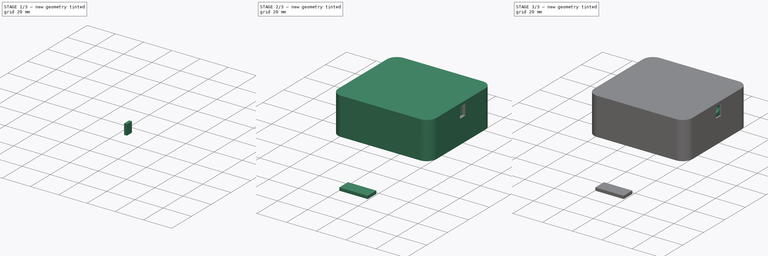
[diagram: build sequence overview — one tinted view per stage of 3, left to right]
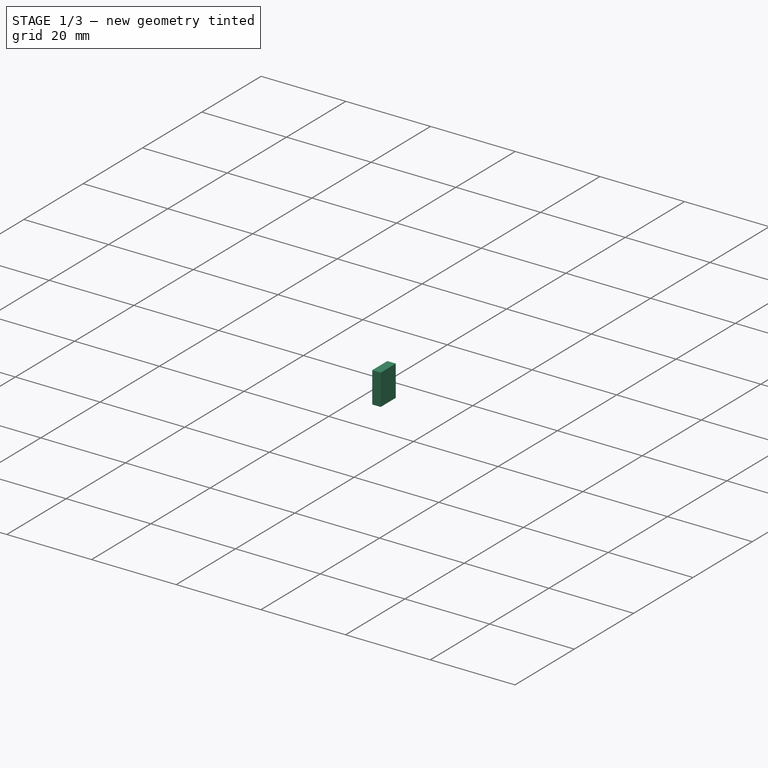
[diagram: stage 1 of 3 — iso view after this stage's code; geometry added in this stage tinted green]
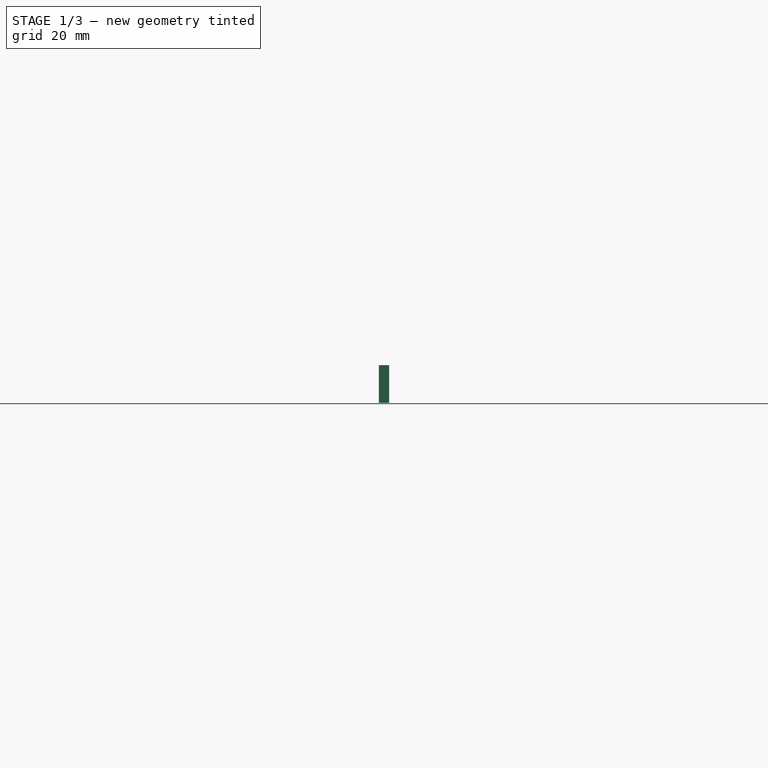
[diagram: stage 1 of 3 — front view after this stage's code; geometry added in this stage tinted green]
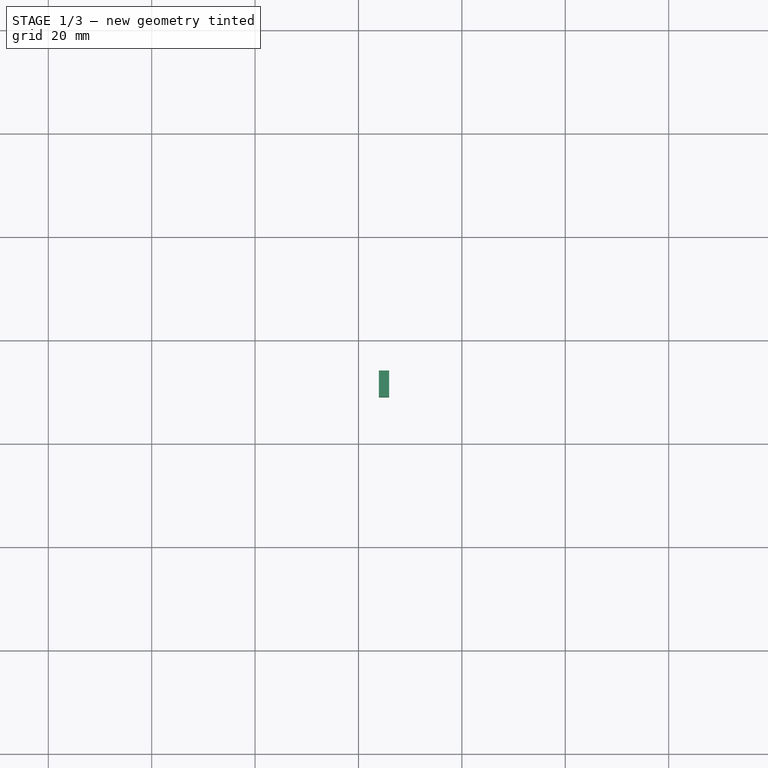
[diagram: stage 1 of 3 — top view after this stage's code; geometry added in this stage tinted green]
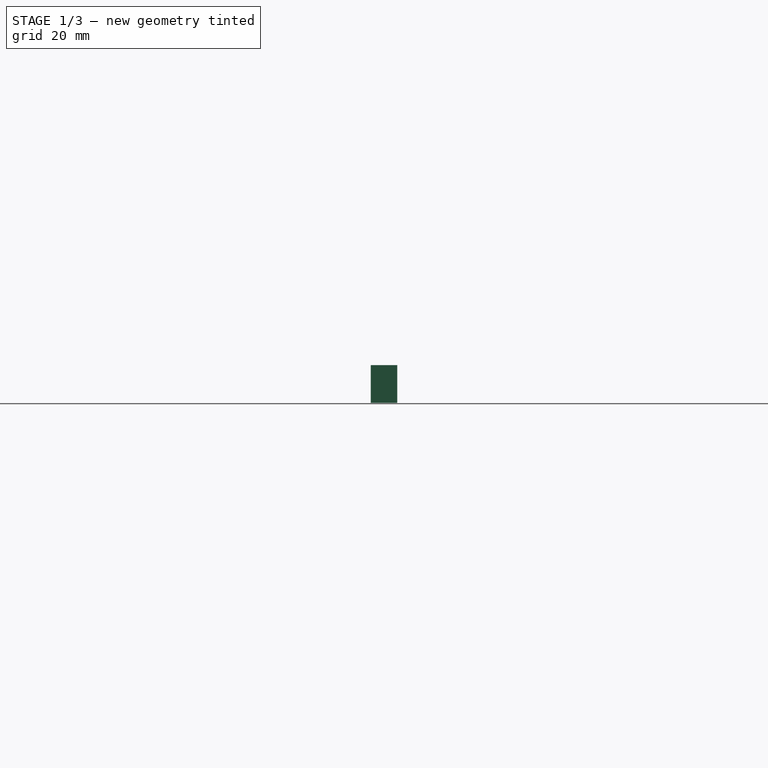
[diagram: stage 1 of 3 — right view after this stage's code; geometry added in this stage tinted green]
FCSTD DOCUMENT  (FreeCAD 0.21R33771 (Git))
Label: Box_Asy
License: All rights reserved
LicenseURL: https://en.wikipedia.org/wiki/All_rights_reserved
objects: Part::FeaturePython×4, Sketcher::SketchObject×2, Part::Extrusion×2, Part::Cut×2
note: 10 computed .brp shape members not serialized (recipe doc carries the construction recipe); baked Part::Feature solids carry a one-line shape summary decoded from their .brp

FEATURE [Part::FeaturePython] b_Back_unit_001_  label="Back_unit_001"  # a2plus imported part (geometry in sourceFile) (typed FeaturePython)
  Placement = pos=(-0.0636952,-0.0177826,2.56684) rot=(0,0,1;0rad)
  a2p_Version = 0.4.66
  fixedPosition = false
  objectType = a2pPart
  sourceFile = .\Back_unit.FCStd
  subassemblyImport = false
  timeLastImport = 1.72527e+09
  updateColors = true
FEATURE [Part::Cut] Cut
  Base = -> Extrude
  Tool = -> Extrude
FEATURE [Sketcher::SketchObject] Sketch001
  FullyConstrained = false
  MapMode = 5
  Placement = pos=(65.9363,-0.0177826,2.56684) rot=(0.57735,0.57735,0.57735;2.0944rad)
  Support = -> [b_Back_unit_001_]
  sketch-geometry (4):
    g0: LineSegment StartX=29.0563 StartY=23.1555 StartZ=0 EndX=34.161 EndY=23.1555 EndZ=0
    g1: LineSegment StartX=34.161 StartY=23.1555 StartZ=0 EndX=34.161 EndY=15.8379 EndZ=0
    g2: LineSegment StartX=34.161 StartY=15.8379 StartZ=0 EndX=29.0563 EndY=15.8379 EndZ=0
    g3: LineSegment StartX=29.0563 StartY=15.8379 StartZ=0 EndX=29.0563 EndY=23.1555 EndZ=0
  constraints (8):
    c: Coincident(g0,g1)
    c: Coincident(g1,g2)
    c: Coincident(g2,g3)
    c: Coincident(g3,g0)
    c: Horizontal(g0)
    c: Horizontal(g2)
    c: Vertical(g1)
    c: Vertical(g3)
FEATURE [Part::Extrusion] Extrude001
  Base = -> Sketch001
  Dir = (1,0,0)
  DirMode = 2
  FaceMakerClass = Part::FaceMakerBullseye
  LengthFwd = -2
  LengthRev = 0
  Solid = true
  Symmetric = false
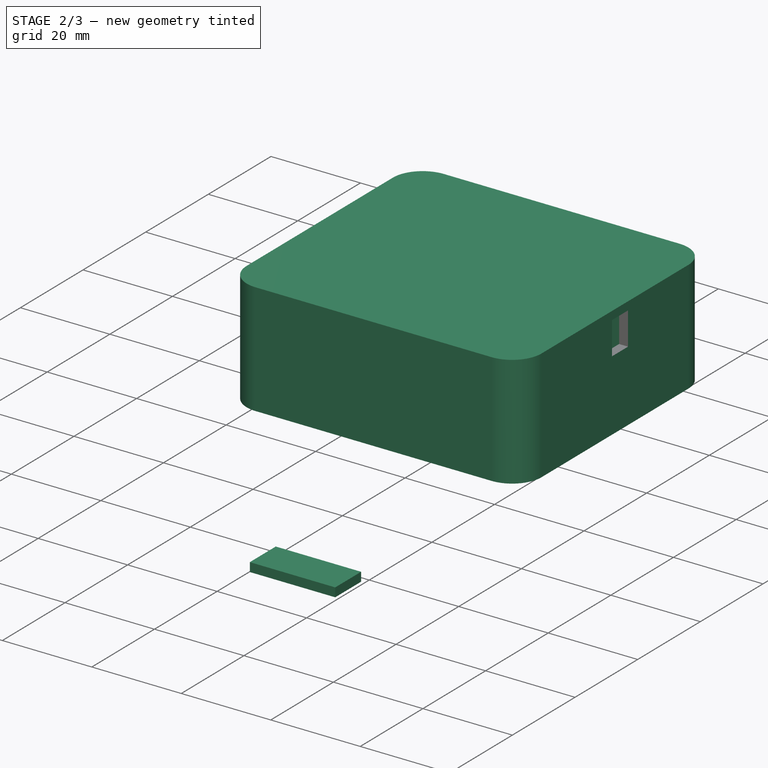
[diagram: stage 2 of 3 — iso view after this stage's code; geometry added in this stage tinted green]
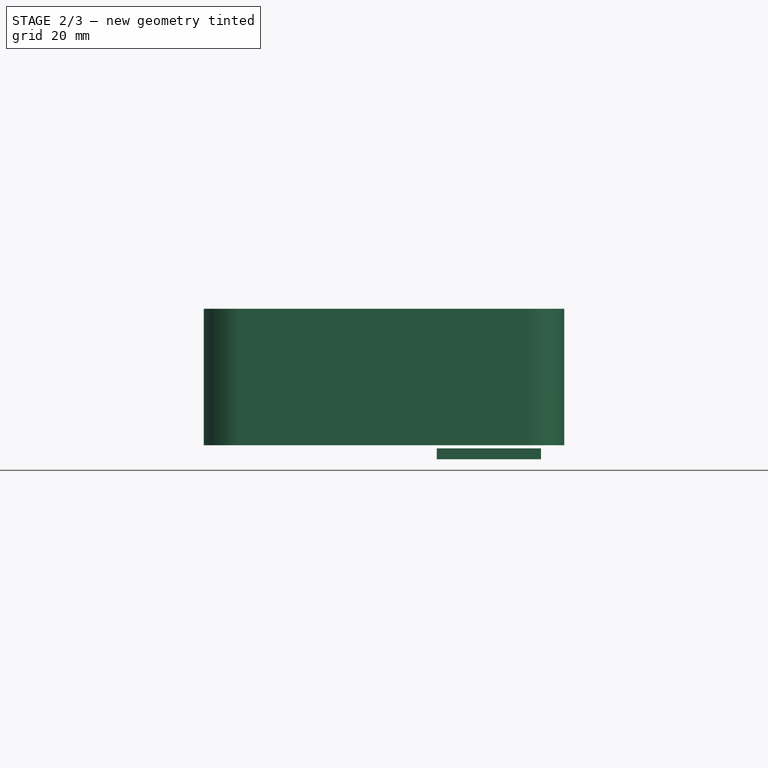
[diagram: stage 2 of 3 — front view after this stage's code; geometry added in this stage tinted green]
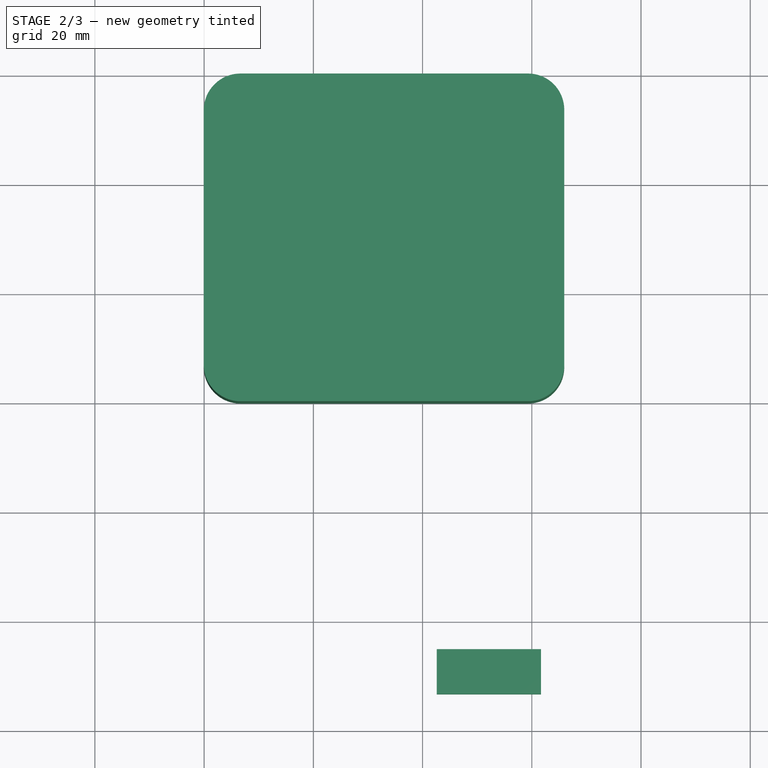
[diagram: stage 2 of 3 — top view after this stage's code; geometry added in this stage tinted green]
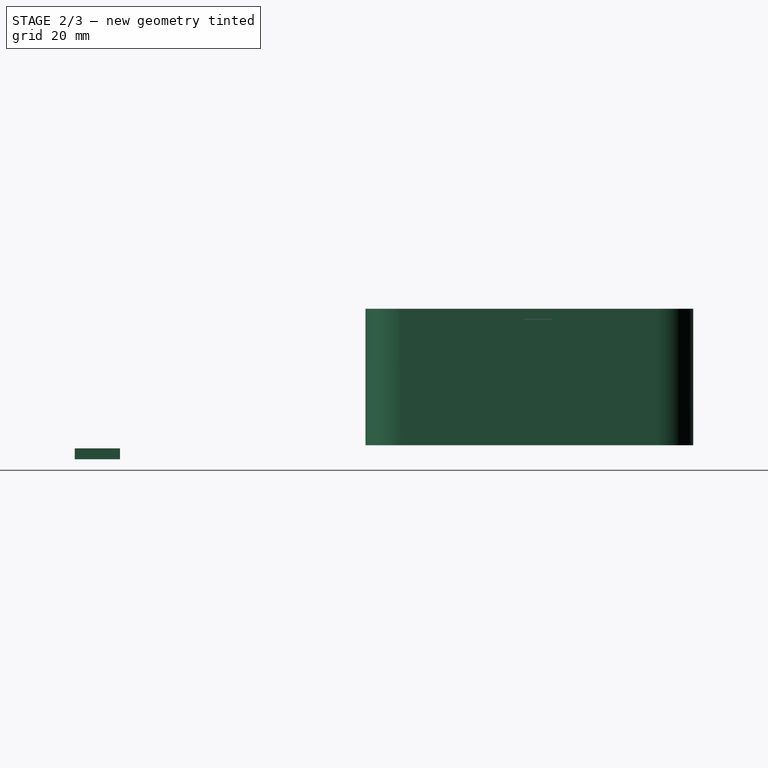
[diagram: stage 2 of 3 — right view after this stage's code; geometry added in this stage tinted green]
FEATURE [Part::FeaturePython] b_Base_001_  label="Base_001"  # a2plus imported part (geometry in sourceFile) (typed FeaturePython)
  a2p_Version = 0.4.66
  fixedPosition = true
  objectType = a2pPart
  sourceFile = .\Base.FCStd
  subassemblyImport = false
  timeLastImport = 1.72527e+09
  updateColors = true
FEATURE [Sketcher::SketchObject] Sketch
  FullyConstrained = false
  MapMode = 5
  Placement = pos=(0,0,2) rot=(0,0,1;0rad)
  Support = -> [b_Base_001_]
  sketch-geometry (4):
    g0: LineSegment StartX=42.592 StartY=-44.9777 StartZ=0 EndX=61.6733 EndY=-44.9777 EndZ=0
    g1: LineSegment StartX=61.6733 StartY=-44.9777 StartZ=0 EndX=61.6733 EndY=-53.2442 EndZ=0
    g2: LineSegment StartX=61.6733 StartY=-53.2442 StartZ=0 EndX=42.592 EndY=-53.2442 EndZ=0
    g3: LineSegment StartX=42.592 StartY=-53.2442 StartZ=0 EndX=42.592 EndY=-44.9777 EndZ=0
  constraints (8):
    c: Coincident(g0,g1)
    c: Coincident(g1,g2)
    c: Coincident(g2,g3)
    c: Coincident(g3,g0)
    c: Horizontal(g0)
    c: Horizontal(g2)
    c: Vertical(g1)
    c: Vertical(g3)
FEATURE [Part::Extrusion] Extrude
  Base = -> Sketch
  Dir = (0,0,1)
  DirMode = 2
  FaceMakerClass = Part::FaceMakerBullseye
  LengthFwd = -2
  LengthRev = 0
  Solid = true
  Symmetric = false
FEATURE [Part::Cut] Cut001
  Base = -> b_Back_unit_001_
  Tool = -> Extrude001
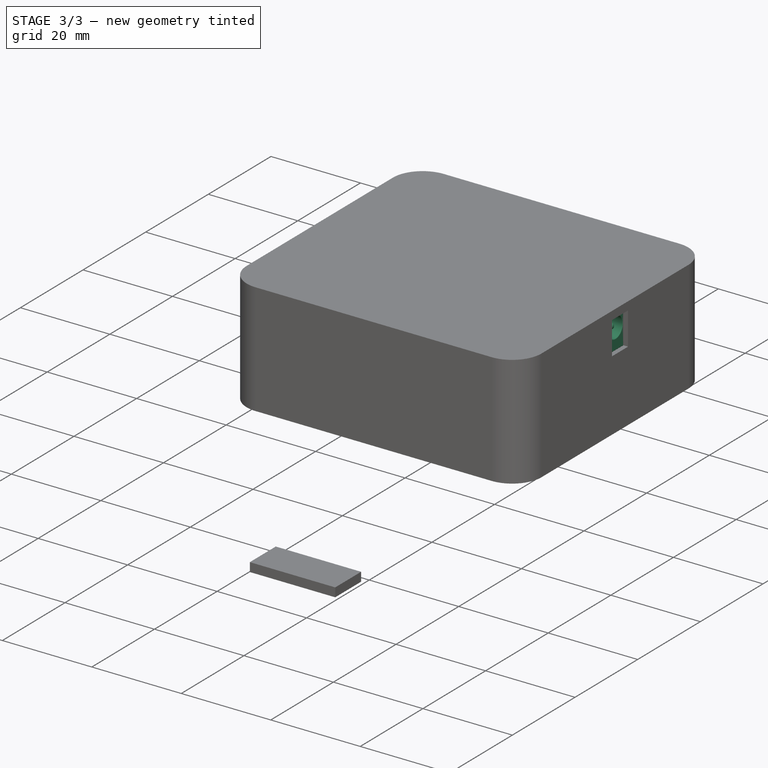
[diagram: stage 3 of 3 — iso view after this stage's code; geometry added in this stage tinted green]
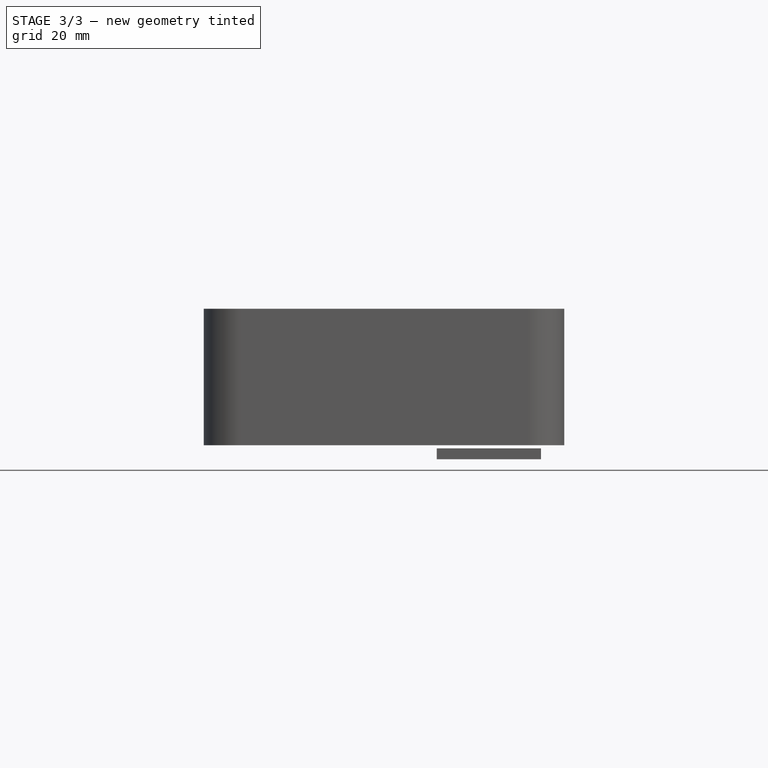
[diagram: stage 3 of 3 — front view after this stage's code; geometry added in this stage tinted green]
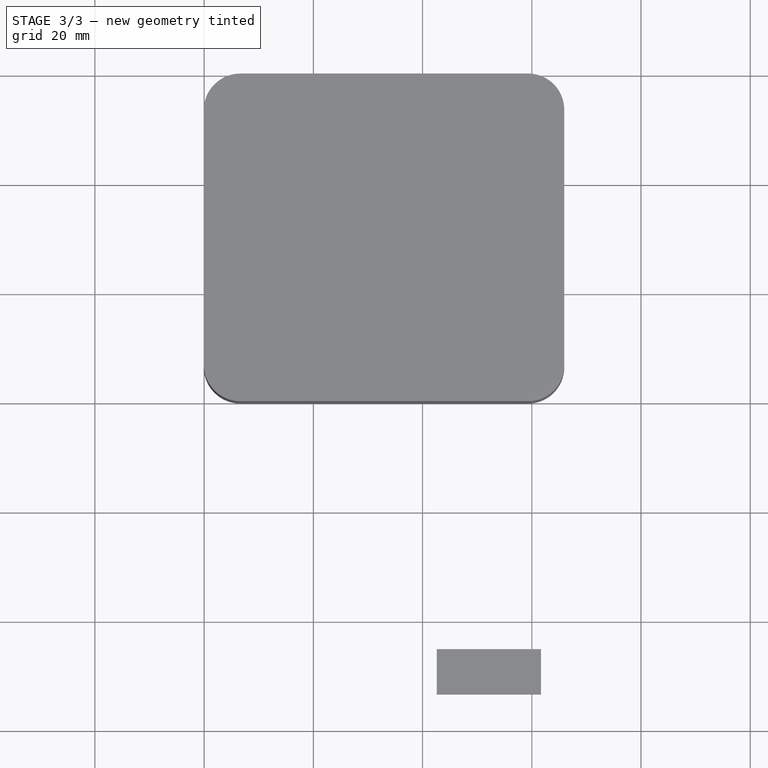
[diagram: stage 3 of 3 — top view after this stage's code; geometry added in this stage tinted green]
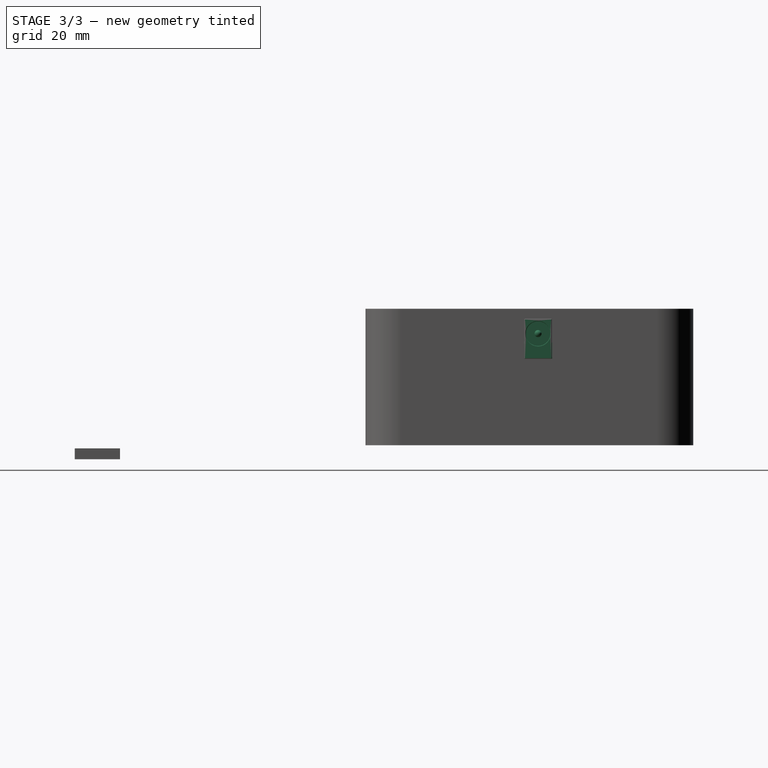
[diagram: stage 3 of 3 — right view after this stage's code; geometry added in this stage tinted green]
FEATURE [Part::FeaturePython] b_RD_board_001_  label="RD_board_001"  # a2plus imported part (geometry in sourceFile) (typed FeaturePython)
  Placement = pos=(4.5,53.3,9) rot=(0,0,1;0rad)
  a2p_Version = 0.4.66
  fixedPosition = false
  objectType = a2pPart
  sourceFile = .\RD_board.FCStd
  subassemblyImport = false
  timeLastImport = 1.72527e+09
  updateColors = true
FEATURE [Part::FeaturePython] b_MB_board_001_  label="MB_board_001"  # a2plus imported part (geometry in sourceFile) (typed FeaturePython)
  Placement = pos=(5.76032,48.2827,8.52335) rot=(0,0,1;0rad)
  a2p_Version = 0.4.66
  fixedPosition = false
  objectType = a2pPart
  sourceFile = .\MB_board.FCStd
  subassemblyImport = true
  timeLastImport = 1.72527e+09
  updateColors = true
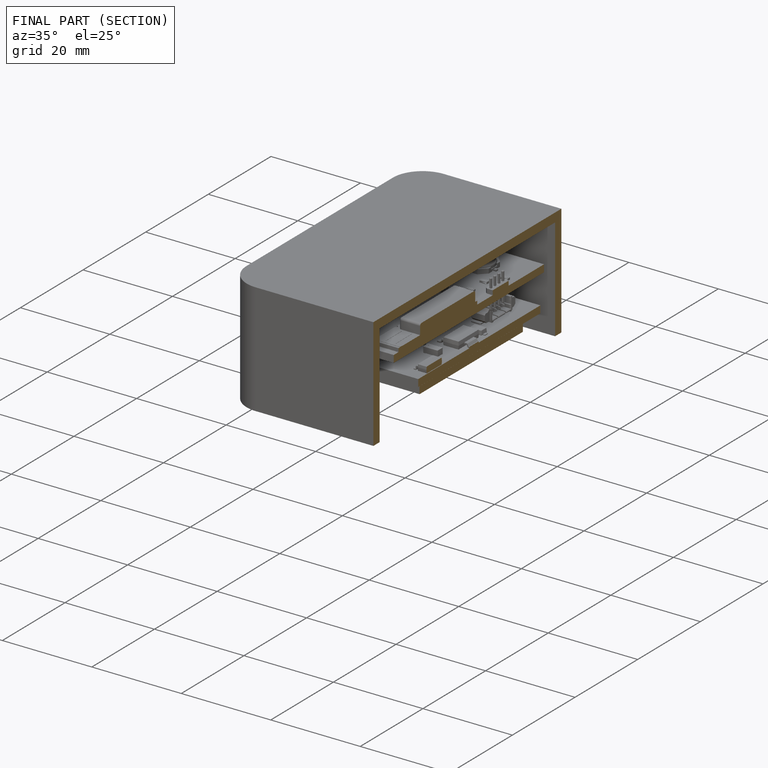
[diagram: finished part — half-section view (interior)]
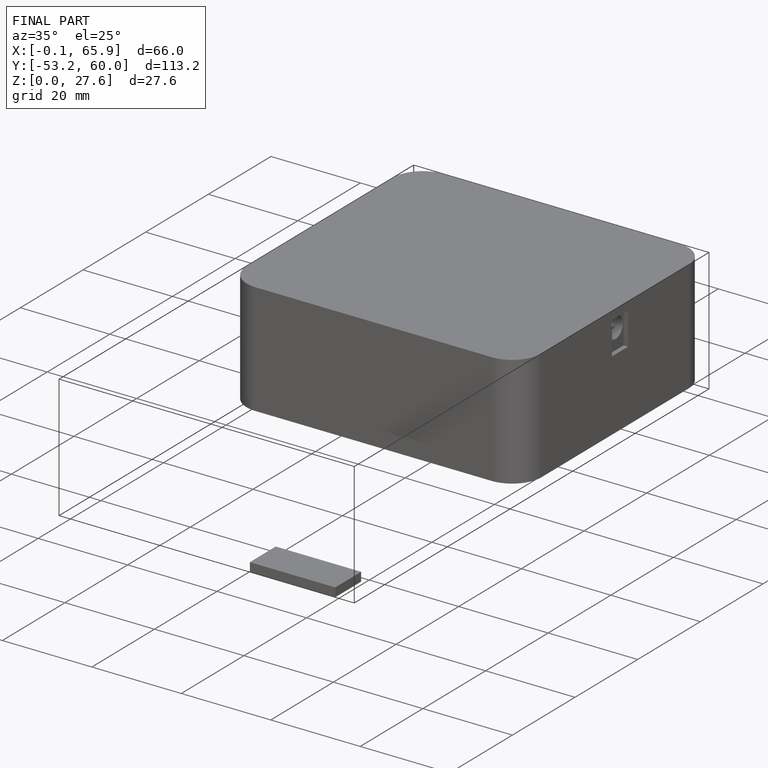
[diagram: finished part — iso view with bounding-box wireframe]
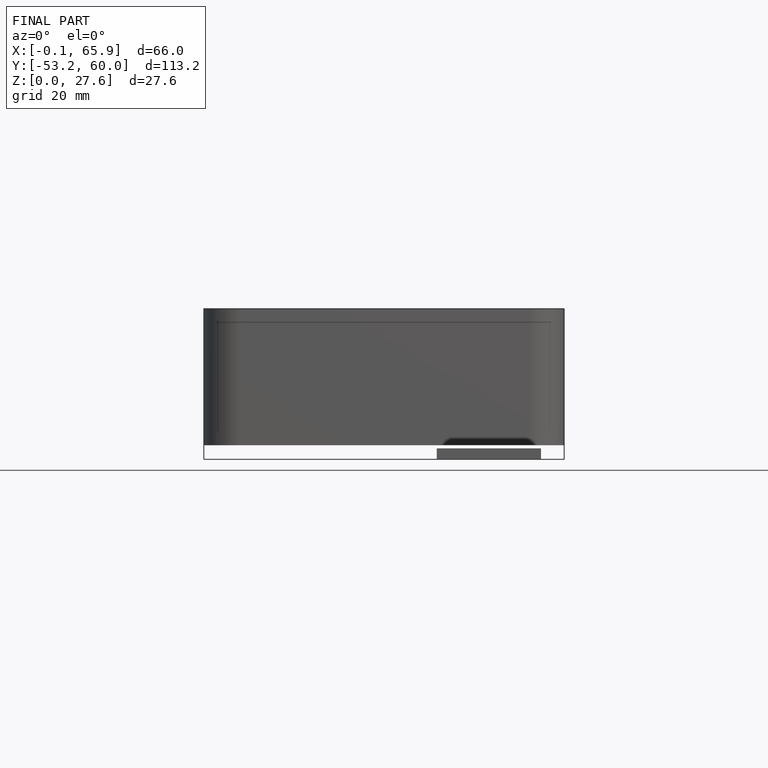
[diagram: finished part — front view with bounding-box wireframe]
